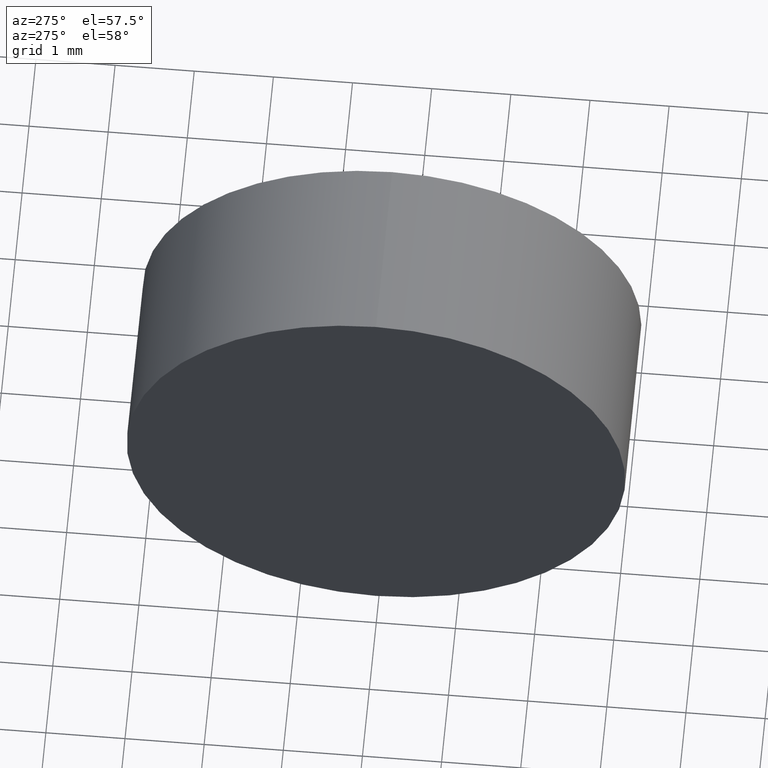
[diagram: clean part render]
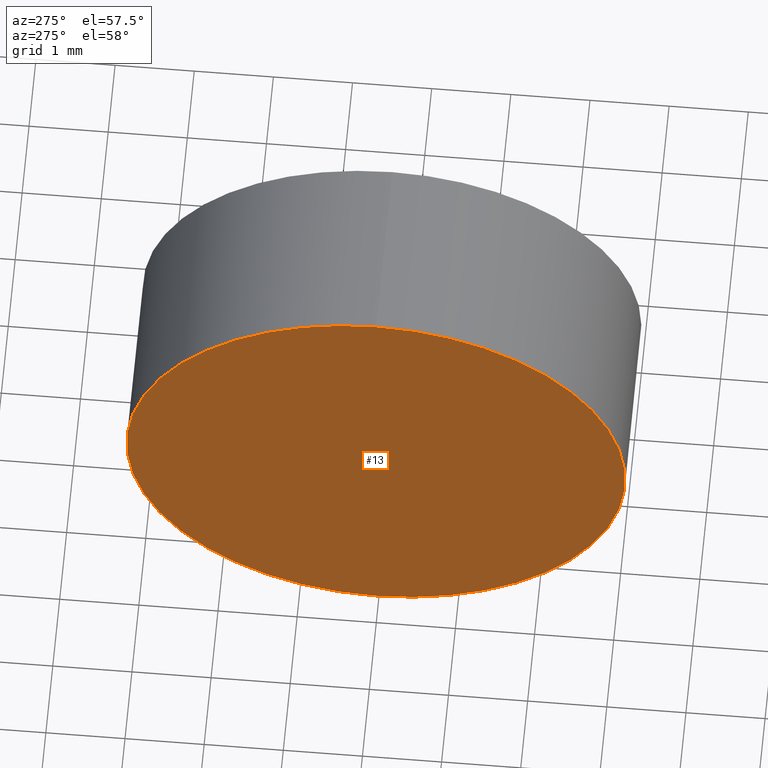
[diagram: same view with one face highlighted and labeled with its STEP entity id]
A machine part, auxiliary view. The second image highlights one B-rep face of the part: STEP entity #13.
In plain terms, the highlighted planar face has unit normal (1, 0, 0).
Its self-contained STEP definition (entity closure, byte-faithful):
#2 = ORIENTED_EDGE ( 'NONE', *, *, #4, .T. ) ;
#4 = EDGE_CURVE ( 'NONE', #172, #180, #105, .T. ) ;
#13 = ADVANCED_FACE ( 'NONE', ( #164 ), #33, .F. ) ;
#16 = AXIS2_PLACEMENT_3D ( 'NONE', #153, #84, #73 ) ;
#33 = PLANE ( 'NONE',  #39 ) ;
#36 = EDGE_LOOP ( 'NONE', ( #62, #2 ) ) ;
#38 = CARTESIAN_POINT ( 'NONE',  ( 22.30926883257449200, 13.03112609140304000, -3.149999999999998100 ) ) ;
#39 = AXIS2_PLACEMENT_3D ( 'NONE', #123, #122, #158 ) ;
#49 = AXIS2_PLACEMENT_3D ( 'NONE', #128, #57, #102 ) ;
#52 = CARTESIAN_POINT ( 'NONE',  ( 22.30926883257449200, 13.03112609140304000, 3.149999999999998100 ) ) ;
#57 = DIRECTION ( 'NONE',  ( -1.000000000000000000, -0.0000000000000000000, -0.0000000000000000000 ) ) ;
#60 = CIRCLE ( 'NONE', #49, 3.149999999999998100 ) ;
#62 = ORIENTED_EDGE ( 'NONE', *, *, #141, .T. ) ;
#73 = DIRECTION ( 'NONE',  ( 0.0000000000000000000, 0.0000000000000000000, 1.000000000000000000 ) ) ;
#84 = DIRECTION ( 'NONE',  ( -1.000000000000000000, -0.0000000000000000000, -0.0000000000000000000 ) ) ;
#102 = DIRECTION ( 'NONE',  ( 0.0000000000000000000, 0.0000000000000000000, 1.000000000000000000 ) ) ;
#105 = CIRCLE ( 'NONE', #16, 3.149999999999998100 ) ;
#122 = DIRECTION ( 'NONE',  ( 1.000000000000000000, 0.0000000000000000000, 0.0000000000000000000 ) ) ;
#123 = CARTESIAN_POINT ( 'NONE',  ( 22.30926883257449200, 13.03112609140304000, 0.0000000000000000000 ) ) ;
#128 = CARTESIAN_POINT ( 'NONE',  ( 22.30926883257449200, 13.03112609140304000, 0.0000000000000000000 ) ) ;
#141 = EDGE_CURVE ( 'NONE', #180, #172, #60, .T. ) ;
#153 = CARTESIAN_POINT ( 'NONE',  ( 22.30926883257449200, 13.03112609140304000, 0.0000000000000000000 ) ) ;
#158 = DIRECTION ( 'NONE',  ( 0.0000000000000000000, 0.0000000000000000000, -1.000000000000000000 ) ) ;
#164 = FACE_OUTER_BOUND ( 'NONE', #36, .T. ) ;
#172 = VERTEX_POINT ( 'NONE', #38 ) ;
#180 = VERTEX_POINT ( 'NONE', #52 ) ;